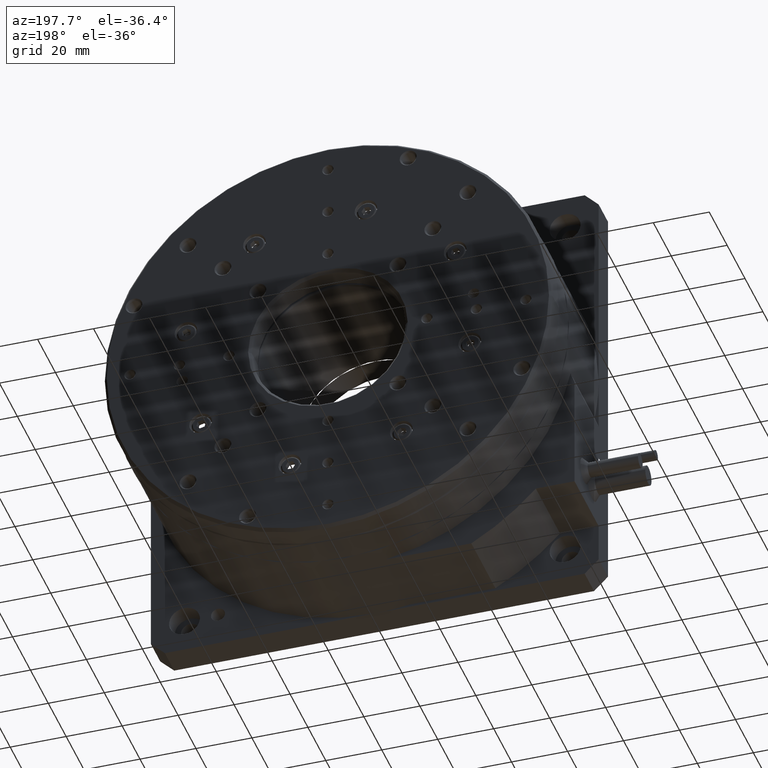
[diagram: clean part render]
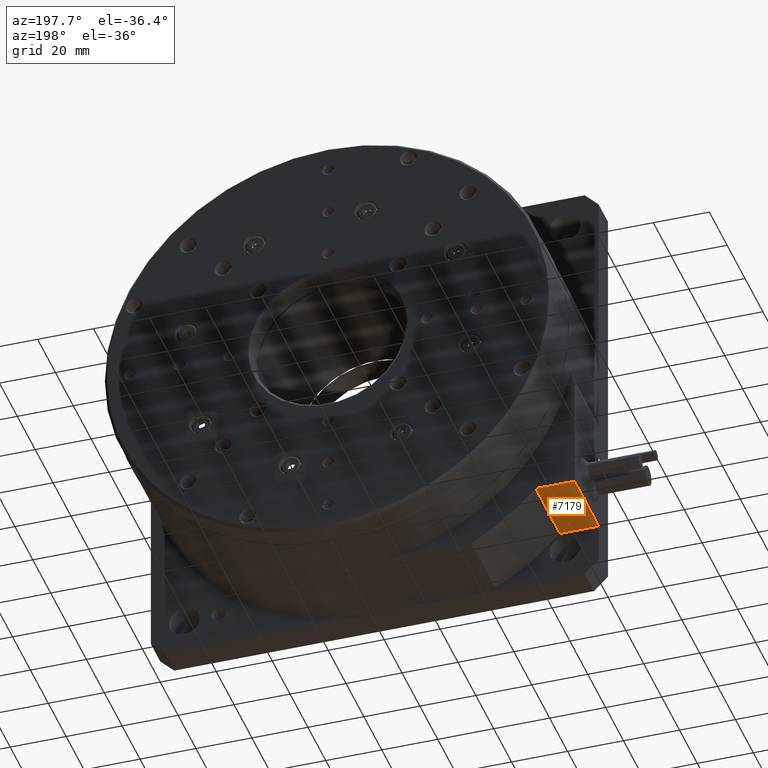
[diagram: same view with one face highlighted and labeled with its STEP entity id]
A machine part, auxiliary view. The second image highlights one B-rep face of the part: STEP entity #7179.
In plain terms, the highlighted planar face has unit normal (-0, 0, 1).
Its self-contained STEP definition (entity closure, byte-faithful):
#142 = CARTESIAN_POINT ( 'NONE',  ( 0.009999999999996123100, 37.50000000000000000, -141.0000000000000600 ) ) ;
#360 = VERTEX_POINT ( 'NONE', #142 ) ;
#1059 = CARTESIAN_POINT ( 'NONE',  ( 0.009999999999996123100, 10.50000000000000000, -141.0000000000000600 ) ) ;
#1489 = PLANE ( 'NONE',  #10210 ) ;
#2474 = ORIENTED_EDGE ( 'NONE', *, *, #3903, .F. ) ;
#2835 = DIRECTION ( 'NONE',  ( -1.728409803594638100E-018, -1.000000000000000000, 1.944368977947036900E-016 ) ) ;
#2965 = CARTESIAN_POINT ( 'NONE',  ( 13.82598697373718700, 10.50000000000000000, -141.0000000000000600 ) ) ;
#3255 = ORIENTED_EDGE ( 'NONE', *, *, #13473, .F. ) ;
#3903 = EDGE_CURVE ( 'NONE', #17049, #16361, #8220, .T. ) ;
#4857 = LINE ( 'NONE', #16011, #7564 ) ;
#5279 = CARTESIAN_POINT ( 'NONE',  ( 13.82598697373718700, 37.50000000000000000, -141.0000000000000600 ) ) ;
#6995 = DIRECTION ( 'NONE',  ( -1.000000000000000000, -8.642049017973240700E-019, -9.020562075079404300E-017 ) ) ;
#7131 = ORIENTED_EDGE ( 'NONE', *, *, #7854, .T. ) ;
#7179 = ADVANCED_FACE ( 'NONE', ( #9769 ), #1489, .F. ) ;
#7318 = LINE ( 'NONE', #16335, #8576 ) ;
#7564 = VECTOR ( 'NONE', #17349, 1000.000000000000000 ) ;
#7854 = EDGE_CURVE ( 'NONE', #14826, #360, #8672, .T. ) ;
#8220 = LINE ( 'NONE', #16994, #10753 ) ;
#8576 = VECTOR ( 'NONE', #6995, 1000.000000000000000 ) ;
#8672 = LINE ( 'NONE', #15240, #10163 ) ;
#8947 = DIRECTION ( 'NONE',  ( 1.728409803594638100E-018, 1.000000000000000000, -1.944368977947036900E-016 ) ) ;
#9769 = FACE_OUTER_BOUND ( 'NONE', #15284, .T. ) ;
#10163 = VECTOR ( 'NONE', #11135, 1000.000000000000000 ) ;
#10210 = AXIS2_PLACEMENT_3D ( 'NONE', #13517, #12277, #2835 ) ;
#10753 = VECTOR ( 'NONE', #8947, 1000.000000000000000 ) ;
#11135 = DIRECTION ( 'NONE',  ( 1.728409803594638100E-018, 1.000000000000000000, -1.944368977947036900E-016 ) ) ;
#12277 = DIRECTION ( 'NONE',  ( -9.020562075079401800E-017, 1.944368977947036900E-016, 1.000000000000000000 ) ) ;
#13473 = EDGE_CURVE ( 'NONE', #16361, #360, #7318, .T. ) ;
#13517 = CARTESIAN_POINT ( 'NONE',  ( 0.009999999999996123100, 37.50000000000000000, -141.0000000000000600 ) ) ;
#14826 = VERTEX_POINT ( 'NONE', #1059 ) ;
#15240 = CARTESIAN_POINT ( 'NONE',  ( 0.009999999999996123100, 37.50000000000000000, -141.0000000000000600 ) ) ;
#15284 = EDGE_LOOP ( 'NONE', ( #7131, #3255, #2474, #17229 ) ) ;
#16011 = CARTESIAN_POINT ( 'NONE',  ( 79.99999999999998600, 10.50000000000000000, -141.0000000000000600 ) ) ;
#16335 = CARTESIAN_POINT ( 'NONE',  ( 0.009999999999996123100, 37.50000000000000000, -141.0000000000000600 ) ) ;
#16361 = VERTEX_POINT ( 'NONE', #5279 ) ;
#16386 = EDGE_CURVE ( 'NONE', #17049, #14826, #4857, .T. ) ;
#16994 = CARTESIAN_POINT ( 'NONE',  ( 13.82598697373718700, 37.50000000000000000, -141.0000000000000600 ) ) ;
#17049 = VERTEX_POINT ( 'NONE', #2965 ) ;
#17229 = ORIENTED_EDGE ( 'NONE', *, *, #16386, .T. ) ;
#17349 = DIRECTION ( 'NONE',  ( -1.000000000000000000, -8.642049017973240700E-019, -9.020562075079404300E-017 ) ) ;